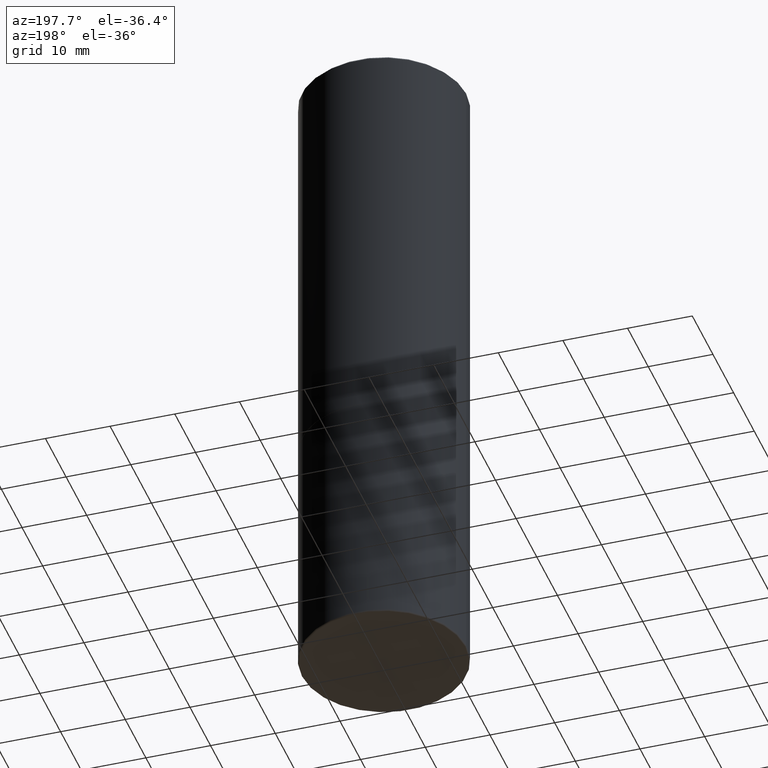
[diagram: clean part render]
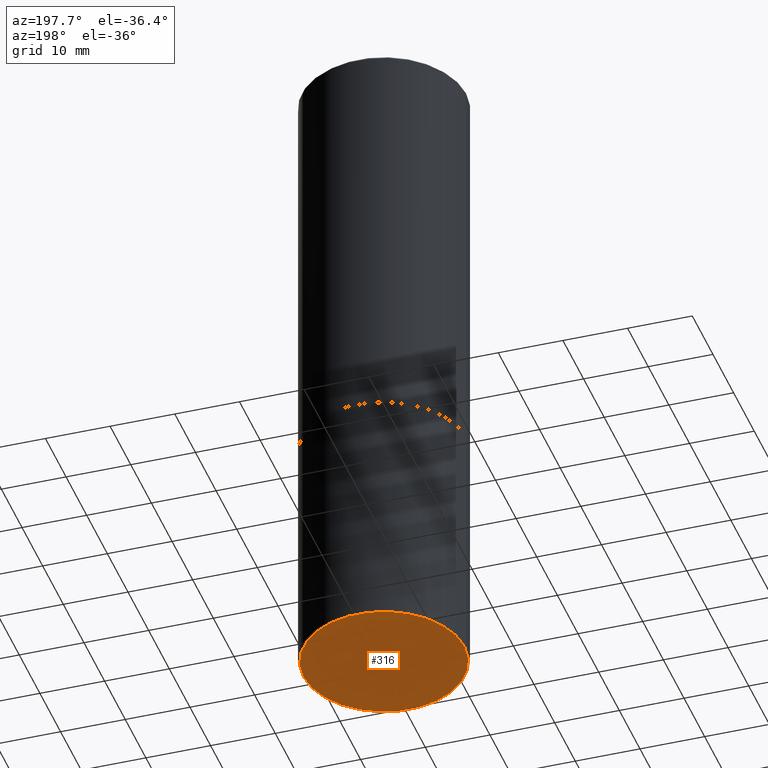
[diagram: same view with one face highlighted and labeled with its STEP entity id]
A machine part, auxiliary view. The second image highlights one B-rep face of the part: STEP entity #316.
In plain terms, the highlighted planar face has unit normal (0, -0, -1).
Its self-contained STEP definition (entity closure, byte-faithful):
#54 = DIRECTION ( 'NONE',  ( 1.000000000000000000, -6.982962677686265922E-15, 0.000000000000000000 ) ) ;
#89 = DIRECTION ( 'NONE',  ( -2.445468806185136597E-29, 3.491481338843145583E-15, 1.000000000000000000 ) ) ;
#99 = EDGE_CURVE ( 'NONE', #320, #205, #195, .T. ) ;
#116 = AXIS2_PLACEMENT_3D ( 'NONE', #301, #249, #328 ) ;
#121 = CARTESIAN_POINT ( 'NONE',  ( 0.4899999999999999911, -1.738757706743885081E-14, -4.000000000000000000 ) ) ;
#134 = AXIS2_PLACEMENT_3D ( 'NONE', #403, #315, #206 ) ;
#186 = ORIENTED_EDGE ( 'NONE', *, *, #189, .F. ) ;
#189 = EDGE_CURVE ( 'NONE', #205, #320, #357, .T. ) ;
#195 = CIRCLE ( 'NONE', #282, 0.4899999999999999911 ) ;
#205 = VERTEX_POINT ( 'NONE', #121 ) ;
#206 = DIRECTION ( 'NONE',  ( 1.000000000000000000, -6.982962677686265922E-15, 0.000000000000000000 ) ) ;
#236 = CARTESIAN_POINT ( 'NONE',  ( -0.4899999999999999911, -1.043128140666586904E-14, -4.000000000000000000 ) ) ;
#249 = DIRECTION ( 'NONE',  ( 2.438088387897960049E-29, -3.491481338843145188E-15, -1.000000000000000000 ) ) ;
#258 = EDGE_LOOP ( 'NONE', ( #186, #382 ) ) ;
#269 = PLANE ( 'NONE',  #116 ) ;
#282 = AXIS2_PLACEMENT_3D ( 'NONE', #341, #89, #54 ) ;
#301 = CARTESIAN_POINT ( 'NONE',  ( 9.781875224740546387E-29, -1.396592535537258233E-14, -4.000000000000000000 ) ) ;
#315 = DIRECTION ( 'NONE',  ( -2.445468806185136597E-29, 3.491481338843145583E-15, 1.000000000000000000 ) ) ;
#316 = ADVANCED_FACE ( 'NONE', ( #402 ), #269, .T. ) ;
#320 = VERTEX_POINT ( 'NONE', #236 ) ;
#328 = DIRECTION ( 'NONE',  ( -1.000000000000000000, 6.982962677686265922E-15, -4.876176775795935793E-29 ) ) ;
#341 = CARTESIAN_POINT ( 'NONE',  ( 9.781875224740546387E-29, -1.396592535537258233E-14, -4.000000000000000000 ) ) ;
#357 = CIRCLE ( 'NONE', #134, 0.4899999999999999911 ) ;
#382 = ORIENTED_EDGE ( 'NONE', *, *, #99, .F. ) ;
#402 = FACE_OUTER_BOUND ( 'NONE', #258, .T. ) ;
#403 = CARTESIAN_POINT ( 'NONE',  ( 9.781875224740546387E-29, -1.396592535537258233E-14, -4.000000000000000000 ) ) ;